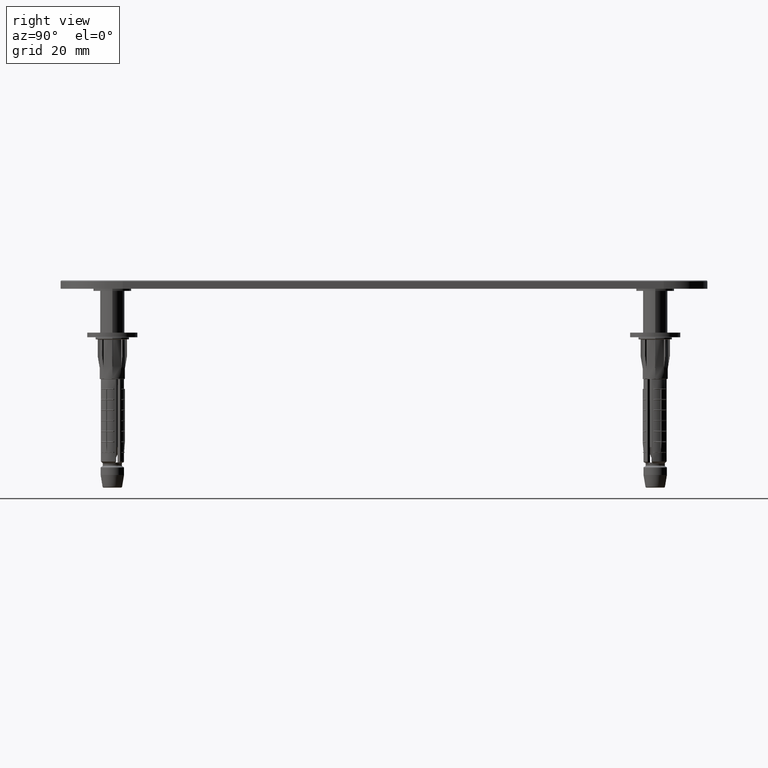
[diagram: clean part render]
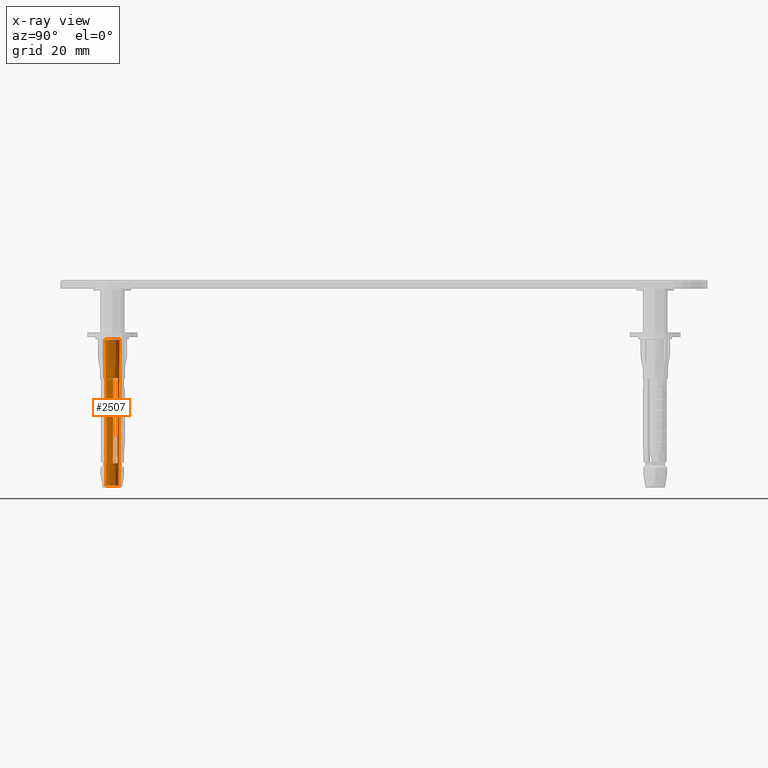
[diagram: x-ray — body ghosted, one internal face saturated and labeled with its STEP entity id]
A machine part, right view, then the same camera in x-ray: the body is ghosted and one INTERNAL B-rep face — a face not visible from any outside direction — is saturated and labeled: STEP entity #2507.
In plain terms, the highlighted conical surface has half-angle 0.401 deg.
Its self-contained STEP definition (entity closure, byte-faithful):
#273 = DIRECTION ( 'NONE',  ( 0.000000000000000000, 1.000000000000000000, 0.000000000000000000 ) ) ;
#275 = DIRECTION ( 'NONE',  ( 0.000000000000000000, -1.000000000000000000, 0.000000000000000000 ) ) ;
#2066 = EDGE_CURVE ( 'NONE', #28537, #30782, #34767, .T. ) ;
#2216 = CARTESIAN_POINT ( 'NONE',  ( 0.8943140097352603179, 1.261854405129790191, -29.08161813890516356 ) ) ;
#2507 = ADVANCED_FACE ( 'NONE', ( #37941, #22258 ), #3254, .F. ) ;
#2583 = CARTESIAN_POINT ( 'NONE',  ( 1.668732476293493638, 0.2094885215505198628, -9.748251790996814492 ) ) ;
#2832 = CARTESIAN_POINT ( 'NONE',  ( 1.634495002005344366, 0.1918465965494355885, -14.91477489714101168 ) ) ;
#2971 = CARTESIAN_POINT ( 'NONE',  ( 0.8869626413926015029, 1.257059582663057284, -30.24825179099680739 ) ) ;
#3254 = CONICAL_SURFACE ( 'NONE', #36349, 1.500000000000000000, 0.006992893005333328423 ) ;
#3347 = LINE ( 'NONE', #34014, #36665 ) ;
#3691 = ORIENTED_EDGE ( 'NONE', *, *, #32455, .T. ) ;
#4294 = DIRECTION ( 'NONE',  ( 0.000000000000000000, -0.006992836012750656971, 0.9999755498233438011 ) ) ;
#5003 = EDGE_CURVE ( 'NONE', #32900, #6303, #30446, .T. ) ;
#5069 = CARTESIAN_POINT ( 'NONE',  ( 0.9739778592488662623, 1.313527471499640331, -16.41511596006032647 ) ) ;
#5350 = CARTESIAN_POINT ( 'NONE',  ( 2.137967597439677086E-16, 1.745783028158170547, -0.6030269733816054911 ) ) ;
#5458 = CARTESIAN_POINT ( 'NONE',  ( 0.9027115561000608190, 1.267324053805257256, -27.74832246951416082 ) ) ;
#5567 = CARTESIAN_POINT ( 'NONE',  ( 1.667629327064346967, 0.2089192303041016996, -9.914913834507210311 ) ) ;
#5574 = CARTESIAN_POINT ( 'NONE',  ( 0.8890632014594700427, 1.258429958756367206, -29.91492789322138179 ) ) ;
#5682 = AXIS2_PLACEMENT_3D ( 'NONE', #8216, #35068, #38046 ) ;
#5697 = CARTESIAN_POINT ( 'NONE',  ( 1.665422525302646894, 0.2077807250073455680, -10.24823791846003118 ) ) ;
#6303 = VERTEX_POINT ( 'NONE', #28641 ) ;
#6550 = DIRECTION ( 'NONE',  ( 5.329070518200751394E-15, -1.000000000000000000, 0.000000000000000000 ) ) ;
#7319 = AXIS2_PLACEMENT_3D ( 'NONE', #9971, #21884, #10100 ) ;
#7930 = CIRCLE ( 'NONE', #7319, 1.681830407055966425 ) ;
#8216 = CARTESIAN_POINT ( 'NONE',  ( 0.000000000000000000, -5.588095458173432147E-19, -0.6030269733816054911 ) ) ;
#8553 = CARTESIAN_POINT ( 'NONE',  ( 1.666526010379683731, 0.2083499647477308481, -10.08157587699704649 ) ) ;
#8682 = CARTESIAN_POINT ( 'NONE',  ( 1.616773400997852717, 0.1827488338190830786, -17.58136715940376860 ) ) ;
#9306 = EDGE_CURVE ( 'NONE', #23957, #18684, #29313, .T. ) ;
#9521 = DIRECTION ( 'NONE',  ( -0.000000000000000000, -1.712792726080124458E-19, -1.000000000000000000 ) ) ;
#9773 = CARTESIAN_POINT ( 'NONE',  ( 0.000000000000000000, 3.433350391091640607E-16, -9.748251790996814492 ) ) ;
#9920 = ORIENTED_EDGE ( 'NONE', *, *, #23706, .T. ) ;
#9971 = CARTESIAN_POINT ( 'NONE',  ( 0.000000000000000000, 3.433350391091640607E-16, -9.748251790996814492 ) ) ;
#10100 = DIRECTION ( 'NONE',  ( -1.776356839400250465E-15, -1.000000000000000000, 0.000000000000000000 ) ) ;
#10142 = ORIENTED_EDGE ( 'NONE', *, *, #11229, .T. ) ;
#10376 = ORIENTED_EDGE ( 'NONE', *, *, #15137, .T. ) ;
#10484 = CARTESIAN_POINT ( 'NONE',  ( 0.6456409658520689820, -1.405425853955954318, -29.08161813890516356 ) ) ;
#10738 = ORIENTED_EDGE ( 'NONE', *, *, #33119, .T. ) ;
#10840 = CARTESIAN_POINT ( 'NONE',  ( 1.668732476293493638, 0.2094885215505198628, -9.748251790996814492 ) ) ;
#10999 = CARTESIAN_POINT ( 'NONE',  ( 1.015788619610740406, 1.340420455815019229, -9.748251790996814492 ) ) ;
#11229 = EDGE_CURVE ( 'NONE', #11312, #20582, #7930, .T. ) ;
#11245 = CARTESIAN_POINT ( 'NONE',  ( 0.000000000000000000, -1.500000000000000000, -35.75000000000000000 ) ) ;
#11312 = VERTEX_POINT ( 'NONE', #28361 ) ;
#11493 = CARTESIAN_POINT ( 'NONE',  ( 1.661008584994464243, 0.2055037660457863791, -10.91488608431727592 ) ) ;
#11839 = CARTESIAN_POINT ( 'NONE',  ( 0.000000000000000000, -1.681830407055966203, -9.748251790996814492 ) ) ;
#11951 = CARTESIAN_POINT ( 'NONE',  ( 0.000000000000000000, -5.180898564425945676E-18, -30.24825179099682870 ) ) ;
#12152 = DIRECTION ( 'NONE',  ( 0.000000000000000000, 6.803593328596413297E-18, 1.000000000000000000 ) ) ;
#12371 = ORIENTED_EDGE ( 'NONE', *, *, #2066, .T. ) ;
#12890 = CARTESIAN_POINT ( 'NONE',  ( 0.6482898947594840644, -1.455410154876639606, -22.41513938176526111 ) ) ;
#14323 = CARTESIAN_POINT ( 'NONE',  ( 0.8985133965385434518, 1.264590781935484465, -28.41497031443465815 ) ) ;
#14450 = CARTESIAN_POINT ( 'NONE',  ( 1.532126853353173113, 0.1396023883222116124, -30.24825179099680739 ) ) ;
#14520 = ORIENTED_EDGE ( 'NONE', *, *, #9306, .T. ) ;
#14585 = CARTESIAN_POINT ( 'NONE',  ( 1.599003518319578987, 0.1736583543094187554, -20.24795912438024814 ) ) ;
#15137 = EDGE_CURVE ( 'NONE', #6303, #24774, #28248, .T. ) ;
#15899 = EDGE_LOOP ( 'NONE', ( #18014, #3691, #14520, #19555, #9920, #10738, #33142, #10376 ) ) ;
#16280 = CARTESIAN_POINT ( 'NONE',  ( 0.6492984556952973163, -1.475339807804667336, -19.74854737969049623 ) ) ;
#16560 = VECTOR ( 'NONE', #31961, 1000.000000000000000 ) ;
#16663 = EDGE_LOOP ( 'NONE', ( #12371, #35230, #10142, #17241 ) ) ;
#17241 = ORIENTED_EDGE ( 'NONE', *, *, #21275, .T. ) ;
#17824 = AXIS2_PLACEMENT_3D ( 'NONE', #9773, #9521, #6550 ) ;
#17868 = B_SPLINE_CURVE_WITH_KNOTS ( 'NONE', 3,
 ( #2583, #5567, #8553, #5697, #11493, #35410, #29505, #2832, #8682, #14585, #36109, #32218, #14450 ),
 .UNSPECIFIED., .F., .F.,
 ( 4, 3, 3, 3, 4 ),
 ( 0.000000000000000000, 0.0005000000000002581589, 0.002500000000033156256, 0.01050000000240637263, 0.02050057427441492885 ),
 .UNSPECIFIED. ) ;
#17995 = DIRECTION ( 'NONE',  ( 0.000000000000000000, 1.712792726080124458E-19, 1.000000000000000000 ) ) ;
#18014 = ORIENTED_EDGE ( 'NONE', *, *, #30288, .F. ) ;
#18074 = CARTESIAN_POINT ( 'NONE',  ( 0.000000000000000000, -6.080713609550873326E-18, -35.50174820900318196 ) ) ;
#18171 = CARTESIAN_POINT ( 'NONE',  ( 0.000000000000000000, -1.538473763699322872, -30.24825179099682870 ) ) ;
#18202 = CARTESIAN_POINT ( 'NONE',  ( 0.6451642119605712766, -1.396661970985268786, -30.24825179099680739 ) ) ;
#18684 = VERTEX_POINT ( 'NONE', #18171 ) ;
#18741 = CARTESIAN_POINT ( 'NONE',  ( 0.6459110442784851136, -1.410430818010761866, -28.41497031443465815 ) ) ;
#19252 = CIRCLE ( 'NONE', #26153, 1.538473763699323094 ) ;
#19555 = ORIENTED_EDGE ( 'NONE', *, *, #35926, .T. ) ;
#19763 = CARTESIAN_POINT ( 'NONE',  ( 0.8901133631146178615, 1.259114848031045009, -29.74826594235975463 ) ) ;
#20582 = VERTEX_POINT ( 'NONE', #10840 ) ;
#20800 = VERTEX_POINT ( 'NONE', #26486 ) ;
#20892 = DIRECTION ( 'NONE',  ( 0.000000000000000000, 6.803593328596413297E-18, 1.000000000000000000 ) ) ;
#21105 = CARTESIAN_POINT ( 'NONE',  ( 0.000000000000000000, -5.180898564425945676E-18, -30.24825179099682870 ) ) ;
#21275 = EDGE_CURVE ( 'NONE', #20582, #28537, #17868, .T. ) ;
#21884 = DIRECTION ( 'NONE',  ( -0.000000000000000000, -1.712792726080124458E-19, -1.000000000000000000 ) ) ;
#22158 = CARTESIAN_POINT ( 'NONE',  ( 0.6452325289770389771, -1.397914218517826157, -30.08158984277008585 ) ) ;
#22258 = FACE_BOUND ( 'NONE', #16663, .T. ) ;
#23605 = DIRECTION ( 'NONE',  ( 1.776356839400250465E-15, 1.000000000000000000, 0.000000000000000000 ) ) ;
#23706 = EDGE_CURVE ( 'NONE', #34963, #33007, #37249, .T. ) ;
#23957 = VERTEX_POINT ( 'NONE', #25475 ) ;
#24216 = AXIS2_PLACEMENT_3D ( 'NONE', #18074, #27161, #35906 ) ;
#24713 = CARTESIAN_POINT ( 'NONE',  ( 0.6505592292629955864, -1.500253304582922942, -16.41511596006032647 ) ) ;
#24774 = VERTEX_POINT ( 'NONE', #5350 ) ;
#24962 = CARTESIAN_POINT ( 'NONE',  ( 0.6472510597482427075, -1.435442561835776898, -25.08173108936442475 ) ) ;
#25475 = CARTESIAN_POINT ( 'NONE',  ( 0.000000000000000000, -1.501736026510467337, -35.50174820900318196 ) ) ;
#25875 = CARTESIAN_POINT ( 'NONE',  ( 0.9362772196692720206, 1.289140595316773386, -22.41513938176526111 ) ) ;
#26142 = CARTESIAN_POINT ( 'NONE',  ( 0.9195041943490761538, 1.278257141286266441, -25.08173108936442475 ) ) ;
#26153 = AXIS2_PLACEMENT_3D ( 'NONE', #21105, #12152, #273 ) ;
#26342 = CARTESIAN_POINT ( 'NONE',  ( 0.6529438566827530099, -1.549908977365538787, -9.748251790996814492 ) ) ;
#26486 = CARTESIAN_POINT ( 'NONE',  ( 1.988531907734992781E-16, 1.501736026510467337, -35.50174820900318196 ) ) ;
#26499 = CARTESIAN_POINT ( 'NONE',  ( 1.532126853353173113, 0.1396023883222116124, -30.24825179099680739 ) ) ;
#26880 = CIRCLE ( 'NONE', #24216, 1.501736026510467337 ) ;
#27161 = DIRECTION ( 'NONE',  ( -0.000000000000000000, -1.712792726080124458E-19, -1.000000000000000000 ) ) ;
#27974 = VECTOR ( 'NONE', #4294, 1000.000000000000000 ) ;
#27988 = CARTESIAN_POINT ( 'NONE',  ( 0.6453007124366823000, -1.399166297412006710, -29.91492789322138179 ) ) ;
#28118 = CARTESIAN_POINT ( 'NONE',  ( 0.6461790473723990624, -1.415433166775063034, -27.74832246951416082 ) ) ;
#28244 = CARTESIAN_POINT ( 'NONE',  ( 0.6453687631197588814, -1.400418208720784152, -29.74826594235975463 ) ) ;
#28248 = CIRCLE ( 'NONE', #5682, 1.745783028158170325 ) ;
#28361 = CARTESIAN_POINT ( 'NONE',  ( 1.015788619610740406, 1.340420455815019229, -9.748251790996814492 ) ) ;
#28537 = VERTEX_POINT ( 'NONE', #26499 ) ;
#28641 = CARTESIAN_POINT ( 'NONE',  ( 0.000000000000000000, -1.745783028158170547, -0.6030269733816054911 ) ) ;
#29313 = LINE ( 'NONE', #36589, #27974 ) ;
#29505 = CARTESIAN_POINT ( 'NONE',  ( 1.652172560847955829, 0.2009510954124484050, -12.24818236635587709 ) ) ;
#30288 = EDGE_CURVE ( 'NONE', #20800, #24774, #3347, .T. ) ;
#30446 = LINE ( 'NONE', #11245, #16560 ) ;
#30501 = EDGE_CURVE ( 'NONE', #30782, #11312, #35867, .T. ) ;
#30782 = VERTEX_POINT ( 'NONE', #2971 ) ;
#30920 = CARTESIAN_POINT ( 'NONE',  ( 0.6451642119605712766, -1.396661970985268786, -30.24825179099680739 ) ) ;
#31714 = CARTESIAN_POINT ( 'NONE',  ( 0.9530325249256442754, 1.299978861172466083, -19.74854737969049623 ) ) ;
#31961 = DIRECTION ( 'NONE',  ( 0.000000000000000000, -0.006992836012750656971, 0.9999755498233438011 ) ) ;
#32097 = CARTESIAN_POINT ( 'NONE',  ( 0.9948955139307371631, 1.327005492811487386, -13.08168407891747087 ) ) ;
#32218 = CARTESIAN_POINT ( 'NONE',  ( 1.554500871815585716, 0.1509422293871669485, -26.91482140879552176 ) ) ;
#32455 = EDGE_CURVE ( 'NONE', #20800, #23957, #26880, .T. ) ;
#32900 = VERTEX_POINT ( 'NONE', #11839 ) ;
#33007 = VERTEX_POINT ( 'NONE', #26342 ) ;
#33119 = EDGE_CURVE ( 'NONE', #33007, #32900, #33792, .T. ) ;
#33142 = ORIENTED_EDGE ( 'NONE', *, *, #5003, .T. ) ;
#33792 = CIRCLE ( 'NONE', #17824, 1.681830407055966647 ) ;
#33900 = CARTESIAN_POINT ( 'NONE',  ( 0.6517727107708675138, -1.525107535580936924, -13.08168407891747087 ) ) ;
#34014 = CARTESIAN_POINT ( 'NONE',  ( 1.836970198721029934E-16, 1.500000000000000000, -35.75000000000000000 ) ) ;
#34767 = CIRCLE ( 'NONE', #37096, 1.538473763699323094 ) ;
#34963 = VERTEX_POINT ( 'NONE', #18202 ) ;
#35068 = DIRECTION ( 'NONE',  ( 0.000000000000000000, 1.712792726080124458E-19, 1.000000000000000000 ) ) ;
#35230 = ORIENTED_EDGE ( 'NONE', *, *, #30501, .T. ) ;
#35410 = CARTESIAN_POINT ( 'NONE',  ( 1.656591950557989357, 0.2032272201278825796, -11.58153423375303603 ) ) ;
#35689 = CARTESIAN_POINT ( 'NONE',  ( 0.000000000000000000, -6.123233995736444329E-18, -35.75000000000000000 ) ) ;
#35867 = B_SPLINE_CURVE_WITH_KNOTS ( 'NONE', 3,
 ( #37125, #36987, #5574, #19763, #2216, #14323, #5458, #26142, #25875, #31714, #5069, #32097, #10999 ),
 .UNSPECIFIED., .F., .F.,
 ( 4, 3, 3, 3, 4 ),
 ( 0.000000000000000000, 0.0005000000000004143925, 0.002500000000050580685, 0.01050000000305951336, 0.02050057427464647627 ),
 .UNSPECIFIED. ) ;
#35906 = DIRECTION ( 'NONE',  ( 0.000000000000000000, -1.000000000000000000, 0.000000000000000000 ) ) ;
#35926 = EDGE_CURVE ( 'NONE', #18684, #34963, #19252, .T. ) ;
#36109 = CARTESIAN_POINT ( 'NONE',  ( 1.576789889387851584, 0.1622946023761522027, -23.58139049783190799 ) ) ;
#36349 = AXIS2_PLACEMENT_3D ( 'NONE', #35689, #17995, #275 ) ;
#36589 = CARTESIAN_POINT ( 'NONE',  ( 0.000000000000000000, -1.500000000000000000, -35.75000000000000000 ) ) ;
#36665 = VECTOR ( 'NONE', #37224, 1000.000000000000000 ) ;
#36969 = CARTESIAN_POINT ( 'NONE',  ( 0.6529438566827530099, -1.549908977365538787, -9.748251790996814492 ) ) ;
#36987 = CARTESIAN_POINT ( 'NONE',  ( 0.8880129610593886502, 1.257744870701107631, -30.08158984277008585 ) ) ;
#37096 = AXIS2_PLACEMENT_3D ( 'NONE', #11951, #20892, #23605 ) ;
#37125 = CARTESIAN_POINT ( 'NONE',  ( 0.8869626413926015029, 1.257059582663057284, -30.24825179099680739 ) ) ;
#37224 = DIRECTION ( 'NONE',  ( 8.563754239977431897E-19, 0.006992836012750656971, 0.9999755498233438011 ) ) ;
#37249 = B_SPLINE_CURVE_WITH_KNOTS ( 'NONE', 3,
 ( #30920, #22158, #27988, #28244, #10484, #18741, #28118, #24962, #12890, #16280, #24713, #33900, #36969 ),
 .UNSPECIFIED., .F., .F.,
 ( 4, 3, 3, 3, 4 ),
 ( 0.000000000000000000, 0.0005000000000004143925, 0.002500000000050580685, 0.01050000000305951336, 0.02050057427464647627 ),
 .UNSPECIFIED. ) ;
#37941 = FACE_OUTER_BOUND ( 'NONE', #15899, .T. ) ;
#38046 = DIRECTION ( 'NONE',  ( 0.000000000000000000, -1.000000000000000000, 0.000000000000000000 ) ) ;